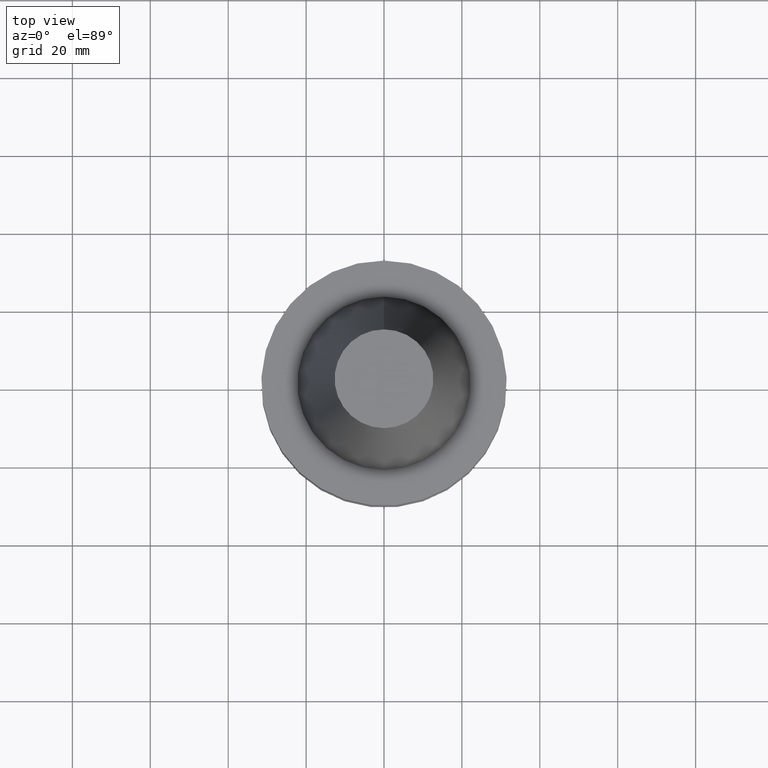
[diagram: clean part render]
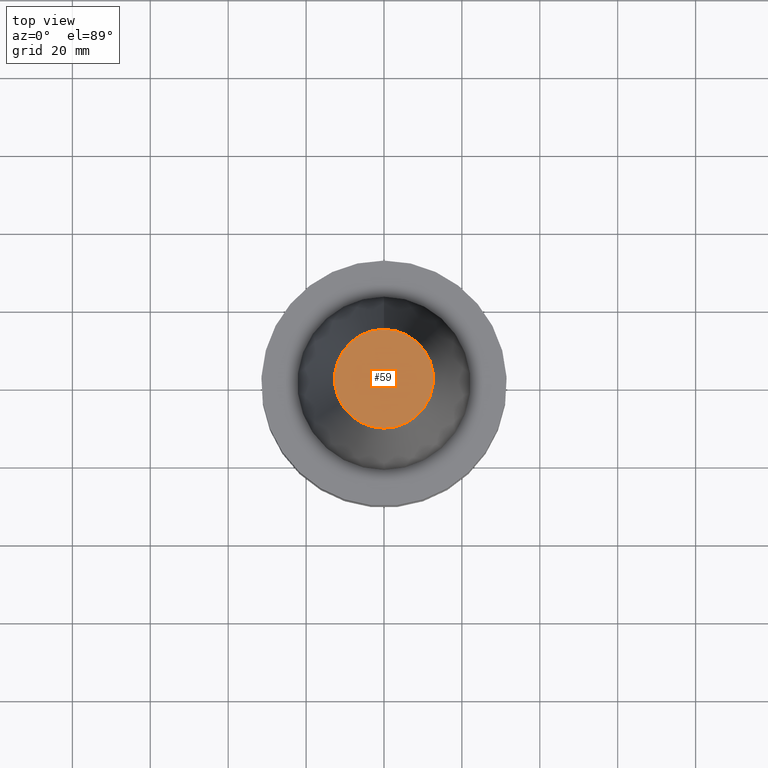
[diagram: same view with one face highlighted and labeled with its STEP entity id]
A machine part, top view. The second image highlights one B-rep face of the part: STEP entity #59.
In plain terms, the highlighted planar face has unit normal (-0, -0, 1).
Its self-contained STEP definition (entity closure, byte-faithful):
#59=ADVANCED_FACE('Unnamed[1]',(#149),#150,.T.);
#112=EDGE_CURVE('Unnamed[1]',#232,#232,#233,.T.);
#149=FACE_OUTER_BOUND('',#269,.T.);
#150=PLANE('',#270);
#232=VERTEX_POINT('',#371);
#233=CIRCLE('',#372,12.6875000000001);
#269=EDGE_LOOP('',(#402));
#270=AXIS2_PLACEMENT_3D('',#403,#404,#405);
#371=CARTESIAN_POINT('',(-4.00459503321185E-015,12.6875000000002,65.4000000000001));
#372=AXIS2_PLACEMENT_3D('',#496,#497,#498);
#402=ORIENTED_EDGE('',*,*,#112,.F.);
#403=CARTESIAN_POINT('',(-4.00459503321185E-015,6.34375000000014,65.4000000000001));
#404=DIRECTION('',(-6.12323399573677E-017,-1.22464679914735E-016,1.0));
#405=DIRECTION('',(1.23259516440783E-032,-1.0,-1.22464679914735E-016));
#496=CARTESIAN_POINT('',(-4.00459503321185E-015,7.66147556229815E-014,65.4000000000001));
#497=DIRECTION('',(6.12323399573677E-017,-5.53589630679993E-016,-1.0));
#498=DIRECTION('',(2.90704357319019E-032,1.0,-5.53589630679993E-016));